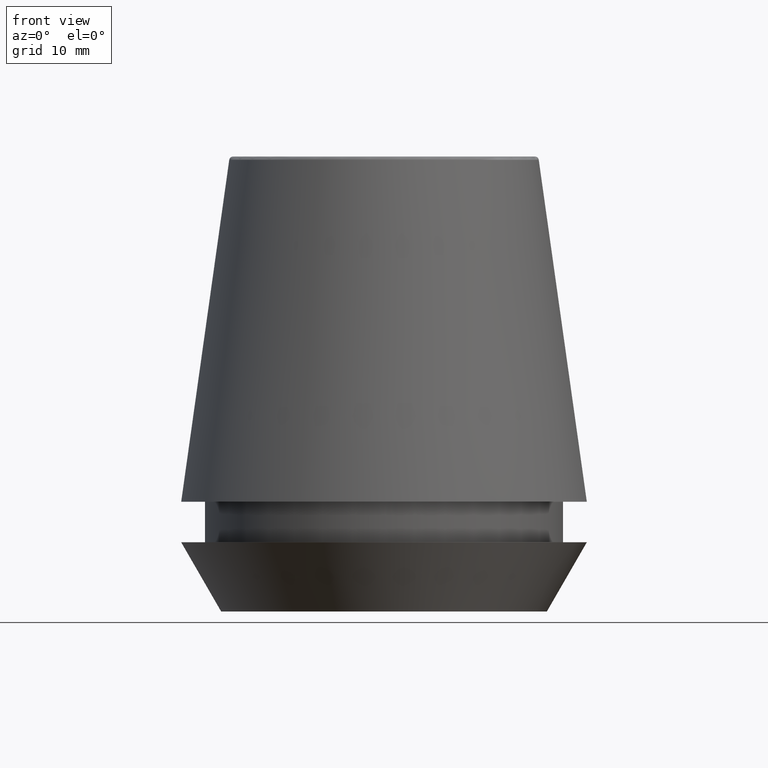
[diagram: clean part render]
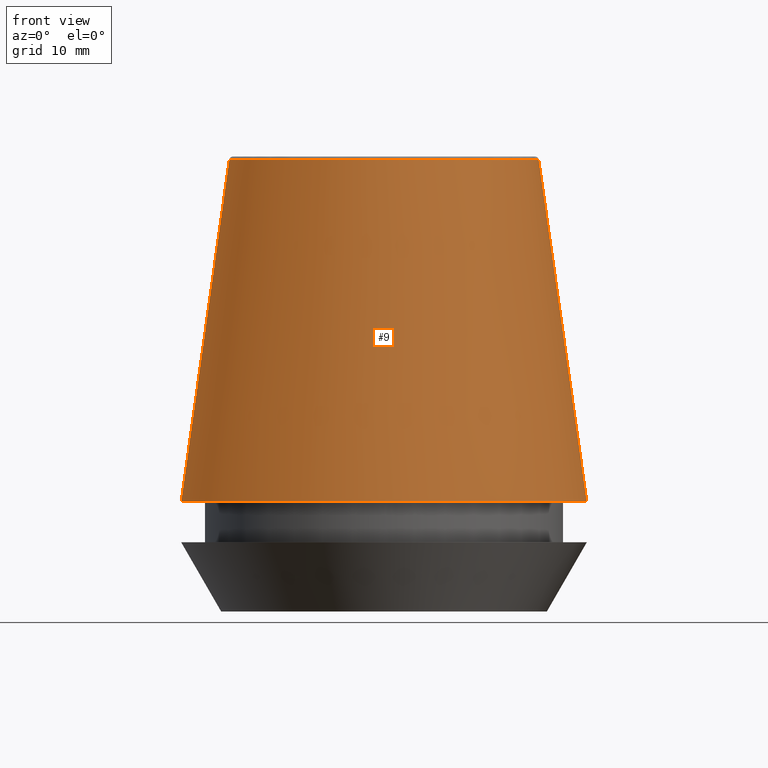
[diagram: same view with one face highlighted and labeled with its STEP entity id]
A machine part, front view. The second image highlights one B-rep face of the part: STEP entity #9.
In plain terms, the highlighted conical surface has half-angle 8 deg.
Its self-contained STEP definition (entity closure, byte-faithful):
#7 = CIRCLE ( 'NONE', #328, 15.64384277279740400 ) ;
#9 = ADVANCED_FACE ( 'NONE', ( #378 ), #363, .T. ) ;
#12 = ORIENTED_EDGE ( 'NONE', *, *, #76, .F. ) ;
#15 = EDGE_CURVE ( 'NONE', #303, #247, #224, .T. ) ;
#17 = DIRECTION ( 'NONE',  ( 0.1391731009600587200, 1.704378926181473400E-017, -0.9902680687415712500 ) ) ;
#40 = CARTESIAN_POINT ( 'NONE',  ( 20.50032537154048700, 2.510565784773633700E-015, 11.09999999999999800 ) ) ;
#41 = CARTESIAN_POINT ( 'NONE',  ( -20.50032537154048700, 0.0000000000000000000, 11.09999999999999800 ) ) ;
#51 = LINE ( 'NONE', #233, #361 ) ;
#76 = EDGE_CURVE ( 'NONE', #120, #237, #7, .T. ) ;
#84 = DIRECTION ( 'NONE',  ( -0.0000000000000000000, -0.0000000000000000000, 1.000000000000000000 ) ) ;
#99 = DIRECTION ( 'NONE',  ( -0.0000000000000000000, -0.0000000000000000000, 1.000000000000000000 ) ) ;
#101 = ORIENTED_EDGE ( 'NONE', *, *, #143, .F. ) ;
#117 = CARTESIAN_POINT ( 'NONE',  ( 0.0000000000000000000, 0.0000000000000000000, 45.65566924038402900 ) ) ;
#120 = VERTEX_POINT ( 'NONE', #243 ) ;
#135 = ORIENTED_EDGE ( 'NONE', *, *, #381, .T. ) ;
#143 = EDGE_CURVE ( 'NONE', #237, #247, #51, .T. ) ;
#148 = CARTESIAN_POINT ( 'NONE',  ( 0.0000000000000000000, 0.0000000000000000000, 11.09999999999999800 ) ) ;
#150 = CARTESIAN_POINT ( 'NONE',  ( -20.50032537154048700, 0.0000000000000000000, 11.09999999999999800 ) ) ;
#151 = LINE ( 'NONE', #150, #302 ) ;
#202 = DIRECTION ( 'NONE',  ( 1.000000000000000000, 0.0000000000000000000, 0.0000000000000000000 ) ) ;
#204 = EDGE_LOOP ( 'NONE', ( #101, #12, #135, #299 ) ) ;
#218 = DIRECTION ( 'NONE',  ( 1.000000000000000000, 0.0000000000000000000, 0.0000000000000000000 ) ) ;
#224 = CIRCLE ( 'NONE', #342, 20.50032537154048700 ) ;
#233 = CARTESIAN_POINT ( 'NONE',  ( 20.50032537154048700, 2.510565784773633700E-015, 11.09999999999999800 ) ) ;
#237 = VERTEX_POINT ( 'NONE', #369 ) ;
#243 = CARTESIAN_POINT ( 'NONE',  ( -15.64384277279740400, 0.0000000000000000000, 45.65566924038402900 ) ) ;
#246 = DIRECTION ( 'NONE',  ( 0.0000000000000000000, 0.0000000000000000000, -1.000000000000000000 ) ) ;
#247 = VERTEX_POINT ( 'NONE', #40 ) ;
#251 = DIRECTION ( 'NONE',  ( -0.1391731009600587200, 0.0000000000000000000, -0.9902680687415712500 ) ) ;
#289 = CARTESIAN_POINT ( 'NONE',  ( 0.0000000000000000000, 0.0000000000000000000, 11.09999999999999800 ) ) ;
#299 = ORIENTED_EDGE ( 'NONE', *, *, #15, .T. ) ;
#302 = VECTOR ( 'NONE', #251, 1000.000000000000000 ) ;
#303 = VERTEX_POINT ( 'NONE', #41 ) ;
#328 = AXIS2_PLACEMENT_3D ( 'NONE', #117, #84, #218 ) ;
#342 = AXIS2_PLACEMENT_3D ( 'NONE', #289, #99, #202 ) ;
#352 = AXIS2_PLACEMENT_3D ( 'NONE', #148, #246, #374 ) ;
#361 = VECTOR ( 'NONE', #17, 1000.000000000000000 ) ;
#363 = CONICAL_SURFACE ( 'NONE', #352, 20.50032537154048700, 0.1396263401595396200 ) ;
#369 = CARTESIAN_POINT ( 'NONE',  ( 15.64384277279740400, 2.213191991290356800E-015, 45.65566924038402900 ) ) ;
#374 = DIRECTION ( 'NONE',  ( -1.000000000000000000, 0.0000000000000000000, 0.0000000000000000000 ) ) ;
#378 = FACE_OUTER_BOUND ( 'NONE', #204, .T. ) ;
#381 = EDGE_CURVE ( 'NONE', #120, #303, #151, .T. ) ;